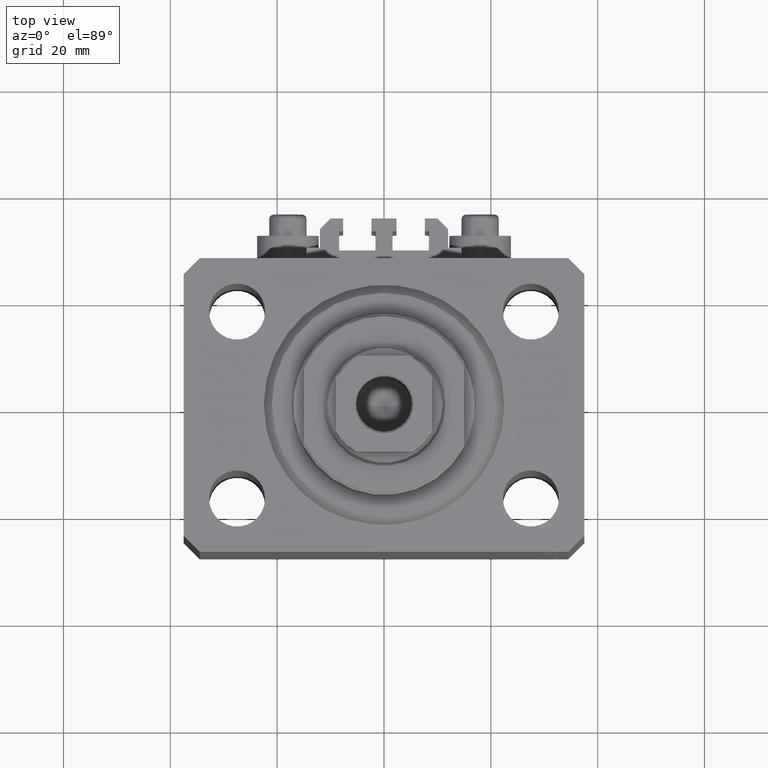
[diagram: clean part render]
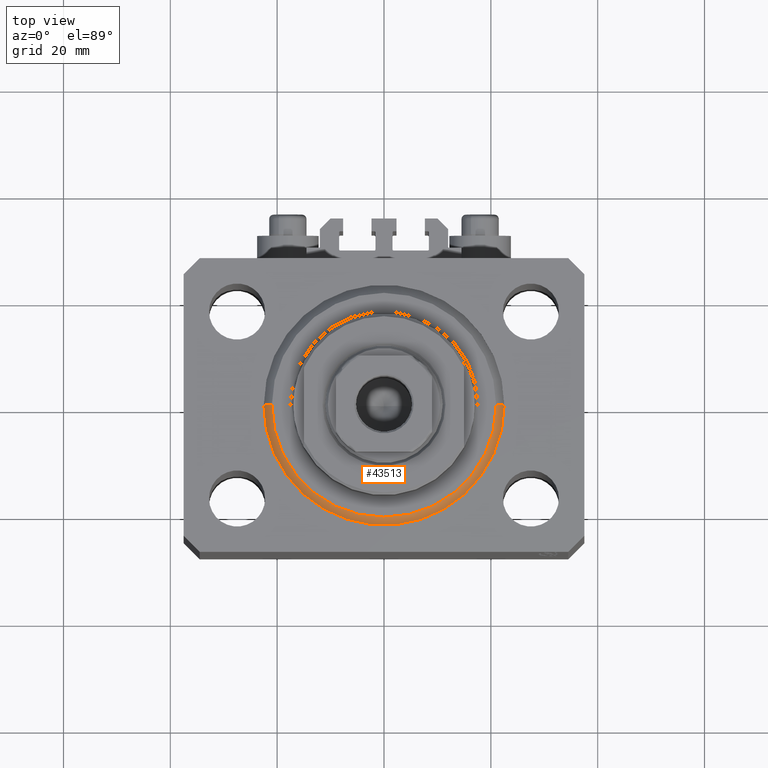
[diagram: same view with one face highlighted and labeled with its STEP entity id]
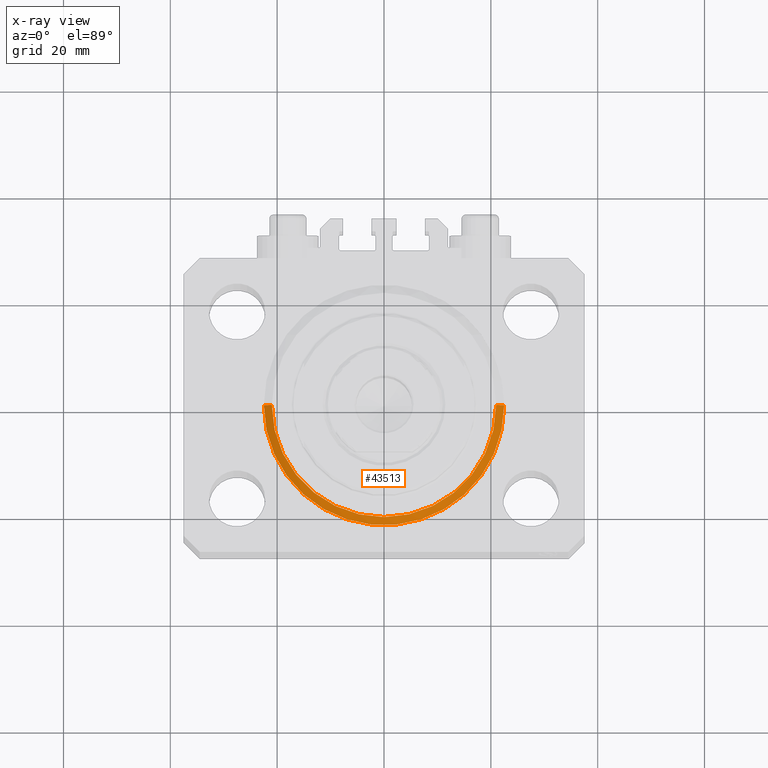
[diagram: x-ray of the same camera — body ghosted, the highlighted face saturated]
A machine part, top view. The second image highlights one B-rep face of the part: STEP entity #43513.
The next image is the same camera in x-ray: the body ghosted, the highlighted face saturated — about 0% of this face is hidden behind the body in this view.
In plain terms, the highlighted conical surface has half-angle 45 deg.
Its self-contained STEP definition (entity closure, byte-faithful):
#1341 = DIRECTION ( 'NONE',  ( 1.000000000000000000, 0.000000000000000000, 0.000000000000000000 ) ) ;
#3829 = CARTESIAN_POINT ( 'NONE',  ( -22.50000000000000355, 2.755455298081545172E-15, 1.500000000000001332 ) ) ;
#4990 = VERTEX_POINT ( 'NONE', #8346 ) ;
#5415 = DIRECTION ( 'NONE',  ( -0.000000000000000000, -0.000000000000000000, -1.000000000000000000 ) ) ;
#5528 = AXIS2_PLACEMENT_3D ( 'NONE', #45750, #45519, #41455 ) ;
#6566 = EDGE_CURVE ( 'NONE', #33976, #14000, #24571, .T. ) ;
#7055 = ORIENTED_EDGE ( 'NONE', *, *, #6566, .F. ) ;
#8268 = EDGE_CURVE ( 'NONE', #14000, #36175, #43921, .T. ) ;
#8346 = CARTESIAN_POINT ( 'NONE',  ( 22.50000000000000355, 2.755455298081545172E-15, 1.500000000000001332 ) ) ;
#9993 = AXIS2_PLACEMENT_3D ( 'NONE', #19597, #5415, #1341 ) ;
#9997 = VECTOR ( 'NONE', #15380, 1000.000000000000114 ) ;
#12834 = AXIS2_PLACEMENT_3D ( 'NONE', #26869, #41490, #31392 ) ;
#14000 = VERTEX_POINT ( 'NONE', #47071 ) ;
#14636 = CARTESIAN_POINT ( 'NONE',  ( 20.99999999999998934, 0.000000000000000000, 0.000000000000000000 ) ) ;
#15380 = DIRECTION ( 'NONE',  ( -0.7071067811865500152, 8.659560562354963673E-17, 0.7071067811865451302 ) ) ;
#17791 = EDGE_CURVE ( 'NONE', #33976, #4990, #32335, .T. ) ;
#19597 = CARTESIAN_POINT ( 'NONE',  ( 0.000000000000000000, 0.000000000000000000, 0.000000000000000000 ) ) ;
#20352 = VECTOR ( 'NONE', #46960, 1000.000000000000114 ) ;
#20645 = ORIENTED_EDGE ( 'NONE', *, *, #17791, .T. ) ;
#24345 = CIRCLE ( 'NONE', #12834, 22.50000000000000355 ) ;
#24571 = CIRCLE ( 'NONE', #9993, 20.99999999999998934 ) ;
#26832 = EDGE_CURVE ( 'NONE', #36175, #4990, #24345, .T. ) ;
#26869 = CARTESIAN_POINT ( 'NONE',  ( 0.000000000000000000, 0.000000000000000000, 1.500000000000001332 ) ) ;
#31392 = DIRECTION ( 'NONE',  ( 1.000000000000000000, 0.000000000000000000, 0.000000000000000000 ) ) ;
#32335 = LINE ( 'NONE', #46478, #20352 ) ;
#33344 = CARTESIAN_POINT ( 'NONE',  ( -22.50000000000000355, 0.000000000000000000, 1.500000000000001332 ) ) ;
#33976 = VERTEX_POINT ( 'NONE', #14636 ) ;
#34734 = FACE_OUTER_BOUND ( 'NONE', #36711, .T. ) ;
#35427 = CONICAL_SURFACE ( 'NONE', #5528, 22.50000000000000355, 0.7853981633974517207 ) ;
#36175 = VERTEX_POINT ( 'NONE', #33344 ) ;
#36711 = EDGE_LOOP ( 'NONE', ( #40593, #7055, #20645, #46048 ) ) ;
#40593 = ORIENTED_EDGE ( 'NONE', *, *, #8268, .F. ) ;
#41455 = DIRECTION ( 'NONE',  ( 1.000000000000000000, 0.000000000000000000, 0.000000000000000000 ) ) ;
#41490 = DIRECTION ( 'NONE',  ( -0.000000000000000000, -0.000000000000000000, 1.000000000000000000 ) ) ;
#43513 = ADVANCED_FACE ( 'NONE', ( #34734 ), #35427, .T. ) ;
#43921 = LINE ( 'NONE', #3829, #9997 ) ;
#45519 = DIRECTION ( 'NONE',  ( -0.000000000000000000, -0.000000000000000000, 1.000000000000000000 ) ) ;
#45750 = CARTESIAN_POINT ( 'NONE',  ( 0.000000000000000000, 0.000000000000000000, 1.500000000000001332 ) ) ;
#46048 = ORIENTED_EDGE ( 'NONE', *, *, #26832, .F. ) ;
#46478 = CARTESIAN_POINT ( 'NONE',  ( 22.50000000000000355, 0.000000000000000000, 1.500000000000001332 ) ) ;
#46960 = DIRECTION ( 'NONE',  ( 0.7071067811865500152, 0.000000000000000000, 0.7071067811865451302 ) ) ;
#47071 = CARTESIAN_POINT ( 'NONE',  ( -20.99999999999998934, 2.663606788145492628E-15, 0.000000000000000000 ) ) ;